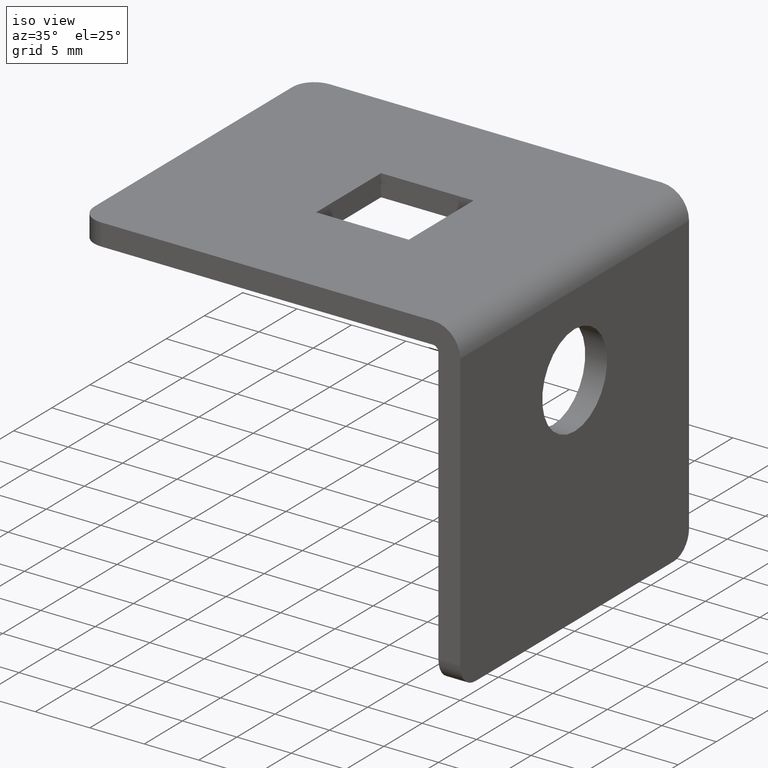
[diagram: clean part render]
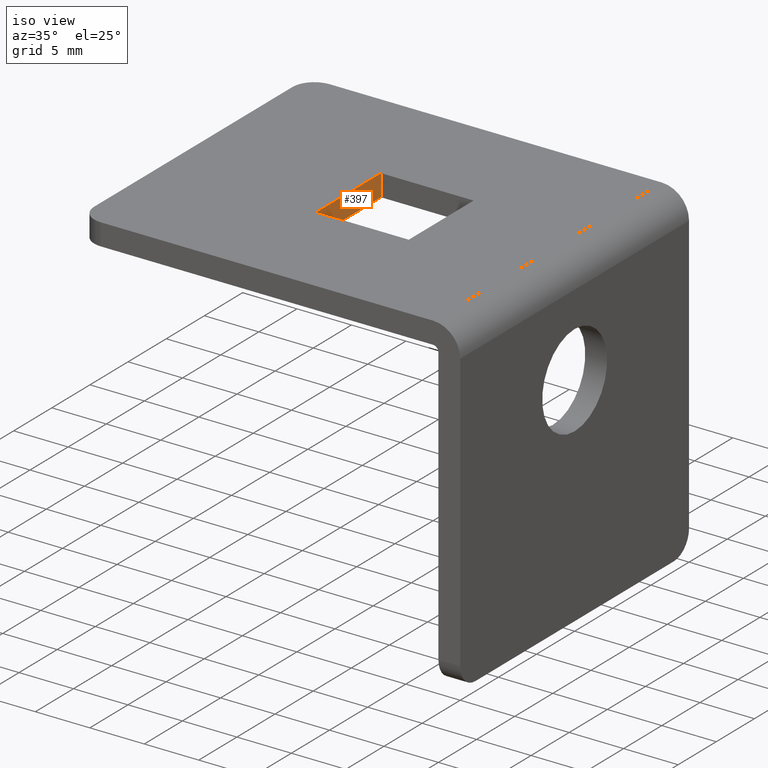
[diagram: same view with one face highlighted and labeled with its STEP entity id]
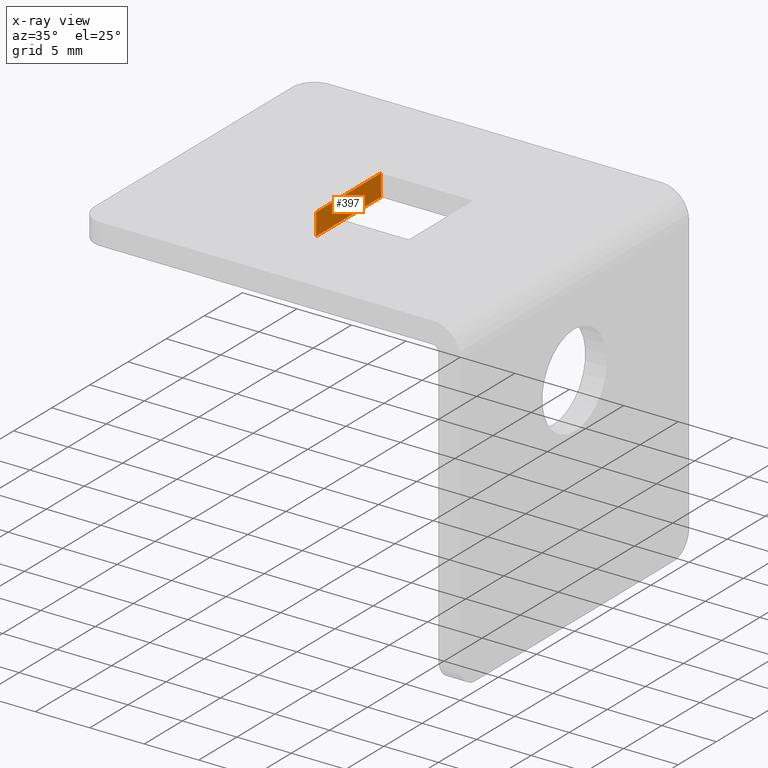
[diagram: x-ray of the same camera — body ghosted, the highlighted face saturated]
A machine part, iso view. The second image highlights one B-rep face of the part: STEP entity #397.
The next image is the same camera in x-ray: the body ghosted, the highlighted face saturated — about 0% of this face is hidden behind the body in this view.
In plain terms, the highlighted planar face has unit normal (-1, 0, 0).
Its self-contained STEP definition (entity closure, byte-faithful):
#28=PLANE('',#432);
#49=FACE_OUTER_BOUND('',#75,.T.);
#75=EDGE_LOOP('',(#328,#329,#330,#331));
#108=LINE('',#625,#148);
#118=LINE('',#649,#158);
#119=LINE('',#652,#159);
#120=LINE('',#653,#160);
#148=VECTOR('',#501,8.5);
#158=VECTOR('',#525,2.);
#159=VECTOR('',#528,8.5);
#160=VECTOR('',#529,2.);
#204=VERTEX_POINT('',#622);
#205=VERTEX_POINT('',#624);
#212=VERTEX_POINT('',#647);
#213=VERTEX_POINT('',#651);
#244=EDGE_CURVE('',#204,#205,#108,.T.);
#256=EDGE_CURVE('',#212,#204,#118,.T.);
#257=EDGE_CURVE('',#213,#212,#119,.T.);
#258=EDGE_CURVE('',#213,#205,#120,.T.);
#328=ORIENTED_EDGE('',*,*,#257,.F.);
#329=ORIENTED_EDGE('',*,*,#258,.T.);
#330=ORIENTED_EDGE('',*,*,#244,.F.);
#331=ORIENTED_EDGE('',*,*,#256,.F.);
#397=ADVANCED_FACE('',(#49),#28,.F.);
#432=AXIS2_PLACEMENT_3D('',#650,#526,#527);
#501=DIRECTION('',(0.,1.,0.));
#525=DIRECTION('',(0.,0.,1.));
#526=DIRECTION('center_axis',(-1.,0.,0.));
#527=DIRECTION('ref_axis',(0.,-1.,0.));
#528=DIRECTION('',(0.,-1.,0.));
#529=DIRECTION('',(0.,0.,1.));
#622=CARTESIAN_POINT('',(14.25,10.75,2.));
#624=CARTESIAN_POINT('',(14.25,19.25,2.));
#625=CARTESIAN_POINT('',(14.25,17.125,2.));
#647=CARTESIAN_POINT('',(14.25,10.75,0.));
#649=CARTESIAN_POINT('',(14.25,10.75,0.));
#650=CARTESIAN_POINT('Origin',(14.25,19.25,0.));
#651=CARTESIAN_POINT('',(14.25,19.25,0.));
#652=CARTESIAN_POINT('',(14.25,17.125,0.));
#653=CARTESIAN_POINT('',(14.25,19.25,0.));